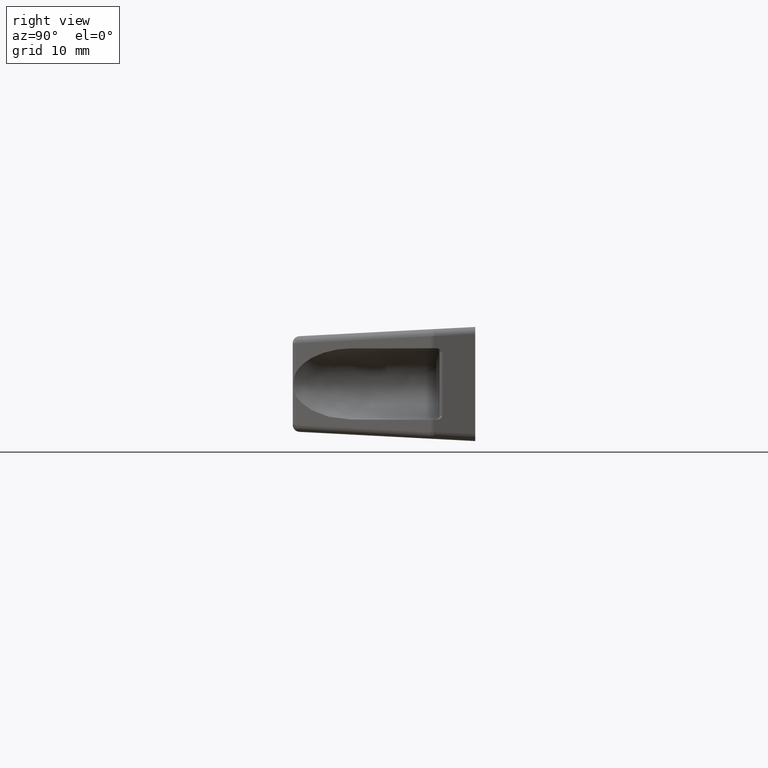
[diagram: clean part render]
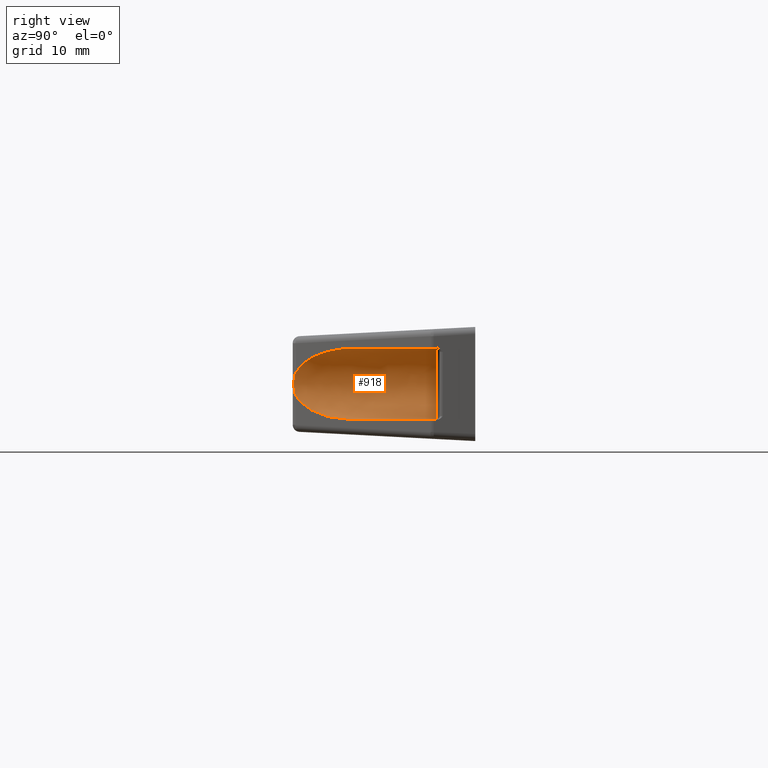
[diagram: same view with one face highlighted and labeled with its STEP entity id]
A machine part, right view. The second image highlights one B-rep face of the part: STEP entity #918.
In plain terms, the highlighted face is a freeform B-spline surface patch.
Its self-contained STEP definition (entity closure, byte-faithful):
#534=CARTESIAN_POINT('',(85.481615913176810,-5.500000000000000,4.999999999999800));
#535=VERTEX_POINT('',#534);
#677=CARTESIAN_POINT('',(85.481615913176810,-5.500000000000000,-5.000000000000110));
#678=VERTEX_POINT('',#677);
#694=CARTESIAN_POINT('',(85.481615913176810,-5.500000000000000,-5.000000000000110));
#695=CARTESIAN_POINT('',(85.010959055256890,-5.497720093290493,-5.000191393201300));
#696=CARTESIAN_POINT('',(84.192573853721754,-5.493755757319259,-4.883755373187695));
#697=CARTESIAN_POINT('',(83.106137601923166,-5.488492956494734,-4.442197552372678));
#698=CARTESIAN_POINT('',(82.322134572329858,-5.484695171043648,-3.912062133444998));
#699=CARTESIAN_POINT('',(81.602002650368334,-5.481206783329728,-3.210466477315952));
#700=CARTESIAN_POINT('',(81.029888733718309,-5.478435408951258,-2.377846294686299));
#701=CARTESIAN_POINT('',(80.668432445171788,-5.476684480214837,-1.458791310983907));
#702=CARTESIAN_POINT('',(80.499124715961599,-5.475864337426496,-0.635098060497429));
#703=CARTESIAN_POINT('',(80.451405121868973,-5.475633179161418,0.225781857399473));
#704=CARTESIAN_POINT('',(80.570720759465715,-5.476211155489919,1.103003668047606));
#705=CARTESIAN_POINT('',(80.892947387765602,-5.477772052009941,2.077023320573558));
#706=CARTESIAN_POINT('',(81.411753926732104,-5.480285200368114,2.991583589495681));
#707=CARTESIAN_POINT('',(82.259245283924031,-5.484390529331696,3.891485348861569));
#708=CARTESIAN_POINT('',(83.197313827648884,-5.488934622828516,4.492666225959466));
#709=CARTESIAN_POINT('',(84.294862209038996,-5.494251251868336,4.899998186785457));
#710=CARTESIAN_POINT('',(85.031425827149263,-5.497819236285578,5.000147203279060));
#711=CARTESIAN_POINT('',(85.481615913176810,-5.500000000000000,4.999999999999800));
#712=B_SPLINE_CURVE_WITH_KNOTS('',3,(#694,#695,#696,#697,#698,#699,#700,#701,#702,#703,#704,#705,#706,#707,#708,#709,#710,#711),.UNSPECIFIED.,.F.,.U.,(4,1,1,1,1,1,1,1,1,1,1,1,1,1,1,4),(0.000000845855665,1.411927153253744,2.455553299046994,3.499183785100675,4.235861130979460,5.463563493592847,6.507216662697111,7.182487398243554,7.980557124220190,9.085580706606852,9.822258557832932,11.049957462677140,12.216379306511451,13.505559326740981,14.365007062954939,15.715554882527069),.UNSPECIFIED.);
#713=EDGE_CURVE('',#678,#535,#712,.T.);
#822=CARTESIAN_POINT('',(84.611096653236075,-26.187846279040428,4.998215110959488));
#823=CARTESIAN_POINT('',(85.640145356480261,-4.989442991655125,4.998215110959488));
#824=CARTESIAN_POINT('',(79.396034037477008,-25.934687899641276,5.137762764063925));
#825=CARTESIAN_POINT('',(80.425082740721194,-4.736284612255971,5.137762764063925));
#826=CARTESIAN_POINT('',(79.484261014257058,-25.938970762591651,-0.084558411092573));
#827=CARTESIAN_POINT('',(80.513309717501244,-4.740567475206346,-0.084558411092573));
#828=CARTESIAN_POINT('',(79.572487991037107,-25.943253625542006,-5.306879586249057));
#829=CARTESIAN_POINT('',(80.601536694281279,-4.744850338156720,-5.306879586249067));
#830=CARTESIAN_POINT('',(84.779853793443692,-26.196038373225040,-4.990838338782801));
#831=CARTESIAN_POINT('',(85.808902496687864,-4.997635085839743,-4.990838338782822));
#839=(BOUNDED_SURFACE()B_SPLINE_SURFACE(1,2,((#822,#824,#826,#828,#830),(#823,#825,#827,#829,#831)),.UNSPECIFIED.,.F.,.F.,.U.)B_SPLINE_SURFACE_WITH_KNOTS((2,2),(3,2,3),(0.0,21.223365500510909),(0.0,8.541039155334032,17.082078310668059),.UNSPECIFIED.)GEOMETRIC_REPRESENTATION_ITEM()RATIONAL_B_SPLINE_SURFACE(((1.0,0.691513055782269,1.0,0.691513055782269,1.0),(1.0,0.691513055782269,1.0,0.691513055782269,1.0)))REPRESENTATION_ITEM('')SURFACE());
#840=CARTESIAN_POINT('',(84.910312551090300,-17.268849259289549,-5.000000000000110));
#841=VERTEX_POINT('',#840);
#842=CARTESIAN_POINT('',(85.481615913176810,-5.500000000000000,-5.000000000000110));
#843=CARTESIAN_POINT('',(84.910312551090300,-17.268849259289549,-5.000000000000110));
#844=QUASI_UNIFORM_CURVE('',1,(#842,#843),.UNSPECIFIED.,.F.,.U.);
#845=EDGE_CURVE('',#678,#841,#844,.T.);
#846=ORIENTED_EDGE('',*,*,#845,.F.);
#847=ORIENTED_EDGE('',*,*,#713,.T.);
#848=CARTESIAN_POINT('',(84.910312551090300,-17.268849259289549,4.999999999999800));
#849=VERTEX_POINT('',#848);
#850=CARTESIAN_POINT('',(84.910312551090300,-17.268849259289549,4.999999999999800));
#851=CARTESIAN_POINT('',(85.481615913176810,-5.500000000000000,4.999999999999800));
#852=QUASI_UNIFORM_CURVE('',1,(#850,#851),.UNSPECIFIED.,.F.,.U.);
#853=EDGE_CURVE('',#849,#535,#852,.T.);
#854=ORIENTED_EDGE('',*,*,#853,.F.);
#855=CARTESIAN_POINT('',(79.795714868306902,-25.144639035015100,1.630397235537375));
#856=VERTEX_POINT('',#855);
#857=CARTESIAN_POINT('',(79.795714868306916,-25.144639035015111,1.630397235537221));
#858=CARTESIAN_POINT('',(81.053380981914998,-23.208003050493126,4.999999999999778));
#859=CARTESIAN_POINT('',(84.910312551090300,-17.268849259289599,4.999999999999778));
#867=(BOUNDED_CURVE()B_SPLINE_CURVE(2,(#857,#858,#859),.UNSPECIFIED.,.F.,.U.)CURVE()GEOMETRIC_REPRESENTATION_ITEM()QUASI_UNIFORM_CURVE()RATIONAL_B_SPLINE_CURVE((1.0,0.814272511849531,1.0))REPRESENTATION_ITEM(''));
#868=EDGE_CURVE('',#856,#849,#867,.T.);
#869=ORIENTED_EDGE('',*,*,#868,.F.);
#870=CARTESIAN_POINT('',(79.795714868306902,-25.144639035015100,-1.630397235537595));
#871=VERTEX_POINT('',#870);
#872=CARTESIAN_POINT('',(79.795714868306902,-25.144639035015100,-1.630397235537645));
#873=CARTESIAN_POINT('',(79.773565028305057,-25.178746797588040,-1.571052262102288));
#874=CARTESIAN_POINT('',(79.752142486784948,-25.207336387736831,-1.509388059953107));
#875=CARTESIAN_POINT('',(79.711387307881935,-25.257271055903210,-1.382661277060279));
#876=CARTESIAN_POINT('',(79.692047505570301,-25.278560740652718,-1.317579921375076));
#877=CARTESIAN_POINT('',(79.655837441112993,-25.315795038304319,-1.184620898995088));
#878=CARTESIAN_POINT('',(79.638968586158256,-25.331710282101259,-1.116688532278508));
#879=CARTESIAN_POINT('',(79.608392665197002,-25.359055976933330,-0.980484212192721));
#880=CARTESIAN_POINT('',(79.594603335062871,-25.370562320105950,-0.911930456003328));
#881=CARTESIAN_POINT('',(79.557747810199658,-25.400091582791511,-0.705081497449162));
#882=CARTESIAN_POINT('',(79.539186471070238,-25.413227904894999,-0.565611240195030));
#883=CARTESIAN_POINT('',(79.520525780405919,-25.426163364414869,-0.354368959249789));
#884=CARTESIAN_POINT('',(79.515837437561387,-25.429315620702859,-0.283611628553824));
#885=CARTESIAN_POINT('',(79.509578332827189,-25.433498837366098,-0.141425205304961));
#886=CARTESIAN_POINT('',(79.508013301173548,-25.434525710049829,-0.069987495569579));
#887=CARTESIAN_POINT('',(79.508074110511373,-25.434485560501841,0.144094288294750));
#888=CARTESIAN_POINT('',(79.514418912027864,-25.430398625999128,0.285579318274003));
#889=CARTESIAN_POINT('',(79.539254652441556,-25.413178603827131,0.566039382354600));
#890=CARTESIAN_POINT('',(79.557749870877686,-25.400085897212549,0.705018101941657));
#891=CARTESIAN_POINT('',(79.594485027445856,-25.370659117766209,0.911303764392480));
#892=CARTESIAN_POINT('',(79.608230743585807,-25.359193214248180,0.979698971403230));
#893=CARTESIAN_POINT('',(79.638721400536298,-25.331938830433870,1.115650501144864));
#894=CARTESIAN_POINT('',(79.655534081714436,-25.316093363544201,1.183451312815540));
#895=CARTESIAN_POINT('',(79.691845864802332,-25.278781511873920,1.316894438561176));
#896=CARTESIAN_POINT('',(79.711237457099813,-25.257446173721771,1.382178298291932));
#897=CARTESIAN_POINT('',(79.752082759701082,-25.207418008609618,1.509219276668537));
#898=CARTESIAN_POINT('',(79.773543773705214,-25.178779526804870,1.570995315701867));
#899=CARTESIAN_POINT('',(79.795714868307002,-25.144639035018351,1.630397235538150));
#900=B_SPLINE_CURVE_WITH_KNOTS('',3,(#872,#873,#874,#875,#876,#877,#878,#879,#880,#881,#882,#883,#884,#885,#886,#887,#888,#889,#890,#891,#892,#893,#894,#895,#896,#897,#898,#899),.UNSPECIFIED.,.F.,.U.,(4,2,2,2,2,2,2,2,2,2,2,2,2,4),(0.0,0.062499999999999,0.124999999999997,0.187499999999996,0.249999999999994,0.374999999999993,0.437499999999994,0.499999999999994,0.624999999999994,0.749999999999995,0.812499999999996,0.874999999999997,0.937499999999999,1.0),.UNSPECIFIED.);
#901=EDGE_CURVE('',#871,#856,#900,.T.);
#902=ORIENTED_EDGE('',*,*,#901,.F.);
#903=CARTESIAN_POINT('',(84.910312551090300,-17.268849259289549,-5.000000000000110));
#904=CARTESIAN_POINT('',(81.053381030474299,-23.208002975718319,-5.000000130102520));
#905=CARTESIAN_POINT('',(79.795714868306916,-25.144639035015029,-1.630397235537594));
#913=(BOUNDED_CURVE()B_SPLINE_CURVE(2,(#903,#904,#905),.UNSPECIFIED.,.F.,.U.)CURVE()GEOMETRIC_REPRESENTATION_ITEM()QUASI_UNIFORM_CURVE()RATIONAL_B_SPLINE_CURVE((1.0,0.814272501255652,1.0))REPRESENTATION_ITEM(''));
#914=EDGE_CURVE('',#841,#871,#913,.T.);
#915=ORIENTED_EDGE('',*,*,#914,.F.);
#916=EDGE_LOOP('',(#846,#847,#854,#869,#902,#915));
#917=FACE_OUTER_BOUND('',#916,.T.);
#918=ADVANCED_FACE('',(#917),#839,.F.);